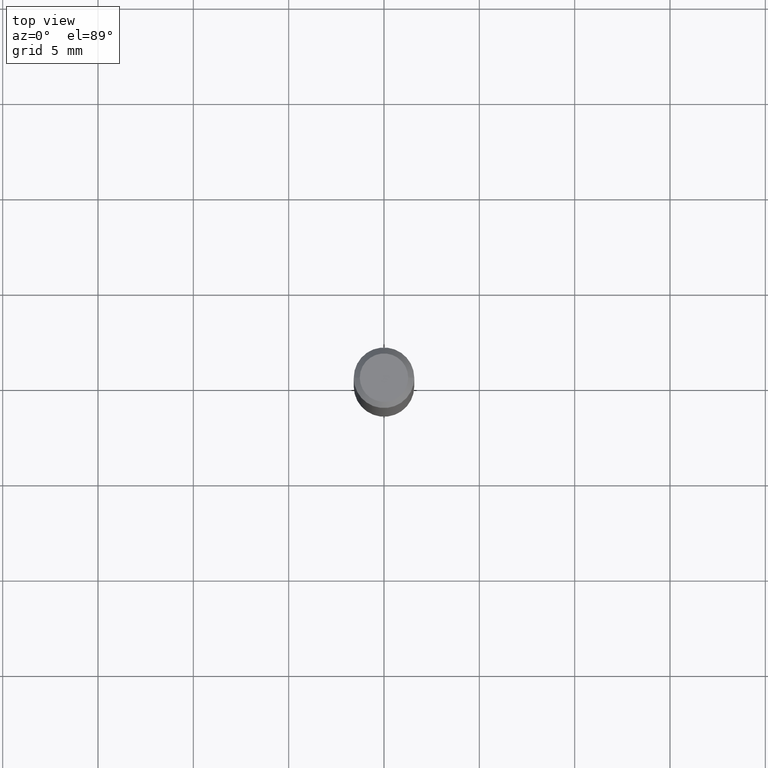
[diagram: clean part render]
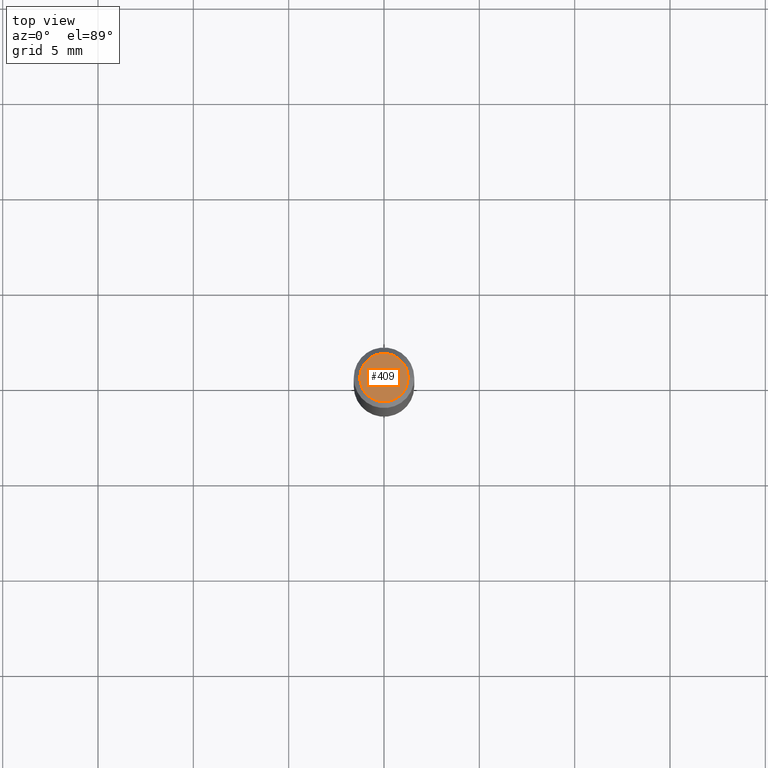
[diagram: same view with one face highlighted and labeled with its STEP entity id]
A machine part, top view. The second image highlights one B-rep face of the part: STEP entity #409.
In plain terms, the highlighted planar face has unit normal (0, -0, -1).
Its self-contained STEP definition (entity closure, byte-faithful):
#6 = FACE_OUTER_BOUND ( 'NONE', #115, .T. ) ;
#25 = CIRCLE ( 'NONE', #289, 0.04999999999999999584 ) ;
#67 = CARTESIAN_POINT ( 'NONE',  ( 3.893286209682126177E-47, -5.558580879666067980E-33, -1.592040838891559689E-18 ) ) ;
#72 = CARTESIAN_POINT ( 'NONE',  ( 3.893286209682126177E-47, -5.558580879666067980E-33, -1.592040838891559689E-18 ) ) ;
#111 = DIRECTION ( 'NONE',  ( 2.438088387897960049E-29, -3.491481338843145188E-15, -1.000000000000000000 ) ) ;
#115 = EDGE_LOOP ( 'NONE', ( #420, #422 ) ) ;
#138 = EDGE_CURVE ( 'NONE', #336, #315, #483, .T. ) ;
#171 = DIRECTION ( 'NONE',  ( 1.000000000000000000, -6.982962677686265922E-15, 4.875957971899673662E-29 ) ) ;
#172 = DIRECTION ( 'NONE',  ( -2.445468806185136597E-29, 3.491481338843145583E-15, 1.000000000000000000 ) ) ;
#180 = PLANE ( 'NONE',  #460 ) ;
#219 = CARTESIAN_POINT ( 'NONE',  ( -0.04999999999999999584, 3.709698922520826725E-16, -1.592040838894077649E-18 ) ) ;
#221 = CARTESIAN_POINT ( 'NONE',  ( 1.946643104841063088E-47, -2.779290439833033990E-33, -7.960204194457798443E-19 ) ) ;
#226 = EDGE_CURVE ( 'NONE', #315, #336, #25, .T. ) ;
#257 = CARTESIAN_POINT ( 'NONE',  ( 0.04999999999999999584, -4.077247707424184705E-16, -1.592040838888913461E-18 ) ) ;
#289 = AXIS2_PLACEMENT_3D ( 'NONE', #67, #172, #403 ) ;
#315 = VERTEX_POINT ( 'NONE', #257 ) ;
#336 = VERTEX_POINT ( 'NONE', #219 ) ;
#337 = DIRECTION ( 'NONE',  ( -1.000000000000000000, 6.982962677686265922E-15, -4.876176775795935793E-29 ) ) ;
#362 = DIRECTION ( 'NONE',  ( -2.445468806185136597E-29, 3.491481338843145583E-15, 1.000000000000000000 ) ) ;
#366 = AXIS2_PLACEMENT_3D ( 'NONE', #72, #362, #171 ) ;
#403 = DIRECTION ( 'NONE',  ( 1.000000000000000000, -6.982962677686265922E-15, 4.875957971899673662E-29 ) ) ;
#409 = ADVANCED_FACE ( 'NONE', ( #6 ), #180, .F. ) ;
#420 = ORIENTED_EDGE ( 'NONE', *, *, #138, .T. ) ;
#422 = ORIENTED_EDGE ( 'NONE', *, *, #226, .T. ) ;
#460 = AXIS2_PLACEMENT_3D ( 'NONE', #221, #111, #337 ) ;
#483 = CIRCLE ( 'NONE', #366, 0.04999999999999999584 ) ;